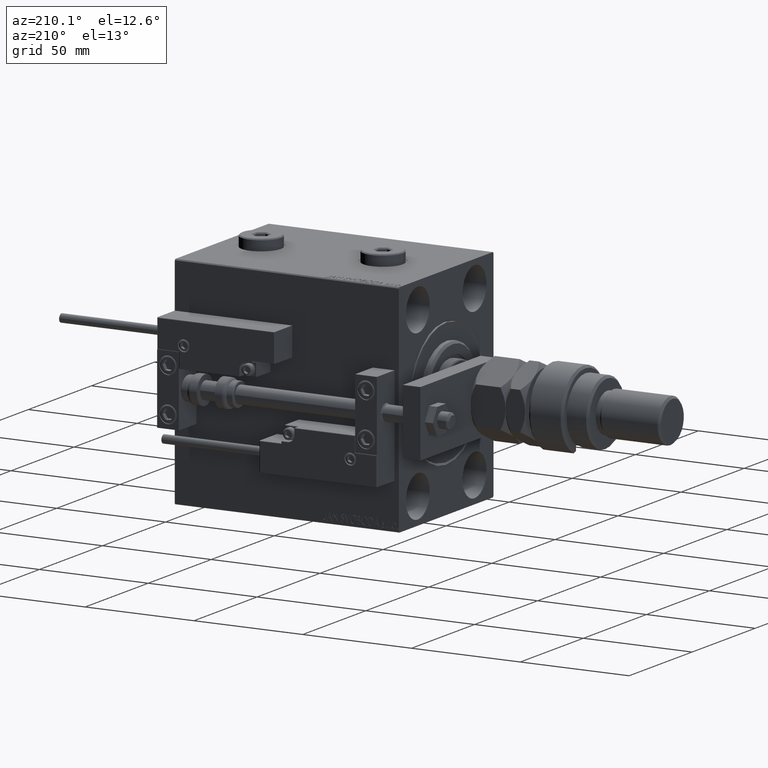
[diagram: clean part render]
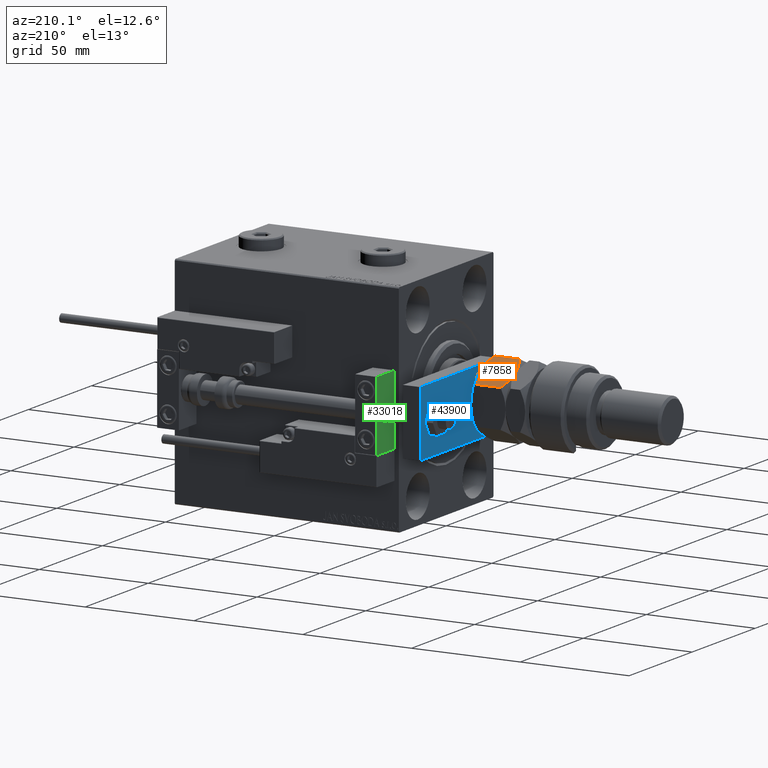
[diagram: same view with three faces highlighted in distinct colors, each labeled with its STEP entity id]
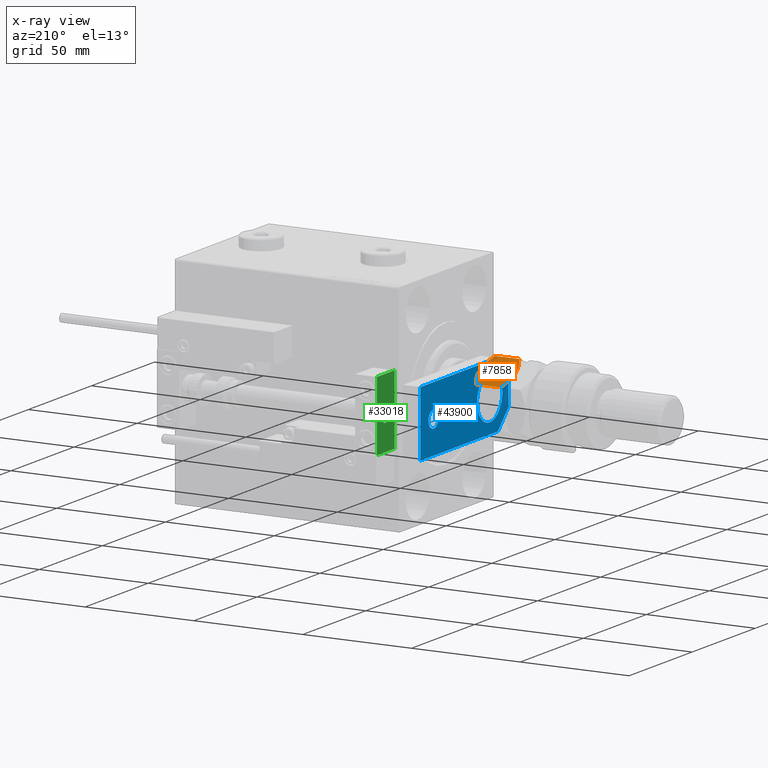
[diagram: x-ray of the same camera — body ghosted, the three highlighted faces saturated]
A machine part, auxiliary view with three faces highlighted in distinct colors.
The next image is the same camera in x-ray (body ghosted, the three faces saturated) — at least one of them is partly hidden behind the body in this view.
Their STEP definitions:

[orange] entity #7858 — the highlighted planar face has unit normal (-0, -0.5, -0.866).
#1274 = EDGE_LOOP ( 'NONE', ( #40872, #54211, #44875, #38166, #1657, #24970 ) ) ;
#1657 = ORIENTED_EDGE ( 'NONE', *, *, #21376, .T. ) ;
#3318 = EDGE_CURVE ( 'NONE', #19815, #14699, #12814, .T. ) ;
#3744 = CARTESIAN_POINT ( 'NONE',  ( 15.00000000000000000, 8.660254037844389075, 13.67949192431123784 ) ) ;
#4502 = EDGE_CURVE ( 'NONE', #13181, #15686, #19189, .T. ) ;
#5013 = CARTESIAN_POINT ( 'NONE',  ( 15.00000000000000000, 8.660254037844389075, 13.67949192431123784 ) ) ;
#5304 = CARTESIAN_POINT ( 'NONE',  ( 1.176108425306640504, 16.64148155974179843, 1.641481559741787111 ) ) ;
#7251 = B_SPLINE_CURVE_WITH_KNOTS ( 'NONE', 3,
 ( #26253, #5304, #13860, #26808, #30674, #26529, #43655, #35361 ),
 .UNSPECIFIED., .F., .F.,
 ( 4, 2, 2, 4 ),
 ( 2.544309033652185071E-07, 0.004488823491893902638, 0.006733108022389172782, 0.008977392552884443794 ),
 .UNSPECIFIED. ) ;
#7471 = CARTESIAN_POINT ( 'NONE',  ( 3.803331551779305683E-16, 17.32050807568877104, 13.67949192431124317 ) ) ;
#7858 = ADVANCED_FACE ( 'NONE', ( #19324 ), #48848, .F. ) ;
#7862 = CARTESIAN_POINT ( 'NONE',  ( 13.82389157469336283, 9.339280553791368789, 14.35851844025821400 ) ) ;
#10576 = B_SPLINE_CURVE_WITH_KNOTS ( 'NONE', 3,
 ( #43920, #25983, #51092, #39789, #30122, #39248 ),
 .UNSPECIFIED., .F., .F.,
 ( 4, 2, 4 ),
 ( 0.008977392552884448998, 0.01343452311421656706, 0.01789165367554868338 ),
 .UNSPECIFIED. ) ;
#12276 = CARTESIAN_POINT ( 'NONE',  ( 10.11832554202262457, 11.47869010025374514, 15.71619733805371411 ) ) ;
#12814 = LINE ( 'NONE', #16691, #35358 ) ;
#13181 = VERTEX_POINT ( 'NONE', #5013 ) ;
#13860 = CARTESIAN_POINT ( 'NONE',  ( 2.378834511187503331, 15.94708733029709080, 1.064486067744004671 ) ) ;
#14205 = CARTESIAN_POINT ( 'NONE',  ( 15.00000000000000000, 8.660254037844389075, 2.320508075688765715 ) ) ;
#14699 = VERTEX_POINT ( 'NONE', #38649 ) ;
#15534 = EDGE_CURVE ( 'NONE', #46351, #44136, #15943, .T. ) ;
#15686 = VERTEX_POINT ( 'NONE', #27843 ) ;
#15943 = B_SPLINE_CURVE_WITH_KNOTS ( 'NONE', 3,
 ( #51887, #39225, #38665, #18252, #47487, #52170 ),
 .UNSPECIFIED., .F., .F.,
 ( 4, 2, 4 ),
 ( 0.008977392552884443794, 0.01343452311421656532, 0.01789165367554868685 ),
 .UNSPECIFIED. ) ;
#16691 = CARTESIAN_POINT ( 'NONE',  ( 0.000000000000000000, 17.32050807568877104, 16.00000000000000000 ) ) ;
#17171 = EDGE_CURVE ( 'NONE', #15686, #19815, #10576, .T. ) ;
#17238 = EDGE_CURVE ( 'NONE', #14699, #46351, #7251, .T. ) ;
#17374 = DIRECTION ( 'NONE',  ( 0.8660254037844387076, -0.4999999999999997224, 0.000000000000000000 ) ) ;
#18252 = CARTESIAN_POINT ( 'NONE',  ( 12.61607045183964715, 10.03661640420386902, 1.060479031370879843 ) ) ;
#19189 = B_SPLINE_CURVE_WITH_KNOTS ( 'NONE', 3,
 ( #3744, #7862, #33230, #24680, #12276, #20565, #37391, #30454 ),
 .UNSPECIFIED., .F., .F.,
 ( 4, 2, 2, 4 ),
 ( 2.544309033641602453E-07, 0.004488823491893906975, 0.006733108022389177119, 0.008977392552884448998 ),
 .UNSPECIFIED. ) ;
#19324 = FACE_OUTER_BOUND ( 'NONE', #1274, .T. ) ;
#19815 = VERTEX_POINT ( 'NONE', #7471 ) ;
#20565 = CARTESIAN_POINT ( 'NONE',  ( 8.823580389329306328, 12.22621156269319798, 15.94046462602529957 ) ) ;
#21376 = EDGE_CURVE ( 'NONE', #13181, #44136, #51541, .T. ) ;
#23109 = CARTESIAN_POINT ( 'NONE',  ( 15.00000000000000000, 8.660254037844389075, 16.00000000000000000 ) ) ;
#24680 = CARTESIAN_POINT ( 'NONE',  ( 10.75222765045651663, 11.11270654730956586, 15.55242859148697576 ) ) ;
#24970 = ORIENTED_EDGE ( 'NONE', *, *, #15534, .F. ) ;
#25983 = CARTESIAN_POINT ( 'NONE',  ( 6.195449321423087241, 13.74356374221446764, 16.00000000000000355 ) ) ;
#26253 = CARTESIAN_POINT ( 'NONE',  ( 7.621669386706803087E-17, 17.32050807568877104, 2.320508075688761718 ) ) ;
#26529 = CARTESIAN_POINT ( 'NONE',  ( 6.176419610670692784, 13.75455055083996214, 0.05953537397470201609 ) ) ;
#26808 = CARTESIAN_POINT ( 'NONE',  ( 4.247772349543482484, 14.86805556622358893, 0.4475714085130255149 ) ) ;
#27843 = CARTESIAN_POINT ( 'NONE',  ( 7.500000000000000000, 12.99038105676657651, 16.00000000000000000 ) ) ;
#30122 = CARTESIAN_POINT ( 'NONE',  ( 1.174746544192161846, 16.64226784216984356, 14.35773215783022572 ) ) ;
#30454 = CARTESIAN_POINT ( 'NONE',  ( 7.500000000000000000, 12.99038105676657651, 16.00000000000000000 ) ) ;
#30674 = CARTESIAN_POINT ( 'NONE',  ( 4.881674457977373649, 14.50207201327941320, 0.2838026619462936107 ) ) ;
#32615 = VECTOR ( 'NONE', #47397, 1000.000000000000000 ) ;
#32909 = AXIS2_PLACEMENT_3D ( 'NONE', #36143, #44699, #17374 ) ;
#33230 = CARTESIAN_POINT ( 'NONE',  ( 12.62116548881249756, 10.03367478323606221, 14.93551393225599710 ) ) ;
#33499 = DIRECTION ( 'NONE',  ( -0.000000000000000000, -0.000000000000000000, -1.000000000000000000 ) ) ;
#35358 = VECTOR ( 'NONE', #33499, 1000.000000000000000 ) ;
#35361 = CARTESIAN_POINT ( 'NONE',  ( 7.499999999999997335, 12.99038105676658184, 0.000000000000000000 ) ) ;
#36143 = CARTESIAN_POINT ( 'NONE',  ( 15.00000000000000000, 8.660254037844389075, 16.00000000000000000 ) ) ;
#37391 = CARTESIAN_POINT ( 'NONE',  ( 8.156876182308252510, 12.61113341608665728, 16.00000000000000355 ) ) ;
#38166 = ORIENTED_EDGE ( 'NONE', *, *, #4502, .F. ) ;
#38649 = CARTESIAN_POINT ( 'NONE',  ( 7.621669386706803087E-17, 17.32050807568877104, 2.320508075688761718 ) ) ;
#38665 = CARTESIAN_POINT ( 'NONE',  ( 10.08691881950258740, 11.49682277995505331, 0.2303299219392160591 ) ) ;
#39225 = CARTESIAN_POINT ( 'NONE',  ( 8.804550678576910983, 12.23719837131869426, -5.031375706690542042E-16 ) ) ;
#39248 = CARTESIAN_POINT ( 'NONE',  ( 3.803331551779305683E-16, 17.32050807568877104, 13.67949192431124317 ) ) ;
#39789 = CARTESIAN_POINT ( 'NONE',  ( 2.383929548160350631, 15.94414570932928576, 14.93952096862913059 ) ) ;
#40872 = ORIENTED_EDGE ( 'NONE', *, *, #17238, .F. ) ;
#43655 = CARTESIAN_POINT ( 'NONE',  ( 6.843123817691747490, 13.36962869744650639, -3.557538378468061917E-16 ) ) ;
#43920 = CARTESIAN_POINT ( 'NONE',  ( 7.500000000000000000, 12.99038105676657651, 16.00000000000000000 ) ) ;
#44136 = VERTEX_POINT ( 'NONE', #14205 ) ;
#44699 = DIRECTION ( 'NONE',  ( -0.4999999999999997780, -0.8660254037844388186, 0.000000000000000000 ) ) ;
#44875 = ORIENTED_EDGE ( 'NONE', *, *, #17171, .F. ) ;
#46351 = VERTEX_POINT ( 'NONE', #51681 ) ;
#47397 = DIRECTION ( 'NONE',  ( -0.000000000000000000, -0.000000000000000000, -1.000000000000000000 ) ) ;
#47487 = CARTESIAN_POINT ( 'NONE',  ( 13.82525345580783949, 9.338494271363313004, 1.642267842169781833 ) ) ;
#48848 = PLANE ( 'NONE',  #32909 ) ;
#51092 = CARTESIAN_POINT ( 'NONE',  ( 4.913081180497409939, 14.48393933357810504, 15.76967007806078946 ) ) ;
#51541 = LINE ( 'NONE', #23109, #32615 ) ;
#51681 = CARTESIAN_POINT ( 'NONE',  ( 7.499999999999997335, 12.99038105676658184, 0.000000000000000000 ) ) ;
#51887 = CARTESIAN_POINT ( 'NONE',  ( 7.499999999999997335, 12.99038105676658184, 0.000000000000000000 ) ) ;
#52170 = CARTESIAN_POINT ( 'NONE',  ( 15.00000000000000000, 8.660254037844389075, 2.320508075688765715 ) ) ;
#54211 = ORIENTED_EDGE ( 'NONE', *, *, #3318, .F. ) ;

[blue] entity #43900 — the highlighted planar face has unit normal (-1, 0, 0).
#374 = VERTEX_POINT ( 'NONE', #43538 ) ;
#449 = DIRECTION ( 'NONE',  ( -1.000000000000000000, 0.000000000000000000, 0.000000000000000000 ) ) ;
#593 = CARTESIAN_POINT ( 'NONE',  ( 10.00000000000000178, 15.00000000000001243, 8.000000000000000000 ) ) ;
#611 = EDGE_CURVE ( 'NONE', #51661, #46571, #7041, .T. ) ;
#783 = VECTOR ( 'NONE', #33940, 1000.000000000000114 ) ;
#2549 = EDGE_CURVE ( 'NONE', #374, #11762, #5631, .T. ) ;
#3190 = CARTESIAN_POINT ( 'NONE',  ( 15.00000000000000355, 0.000000000000000000, 8.000000000000000000 ) ) ;
#4165 = VECTOR ( 'NONE', #449, 1000.000000000000000 ) ;
#4853 = CARTESIAN_POINT ( 'NONE',  ( 15.00000000000000000, 70.00000000000000000, 8.000000000000000000 ) ) ;
#5348 = LINE ( 'NONE', #47272, #42470 ) ;
#5631 = LINE ( 'NONE', #23193, #14189 ) ;
#5931 = ORIENTED_EDGE ( 'NONE', *, *, #31595, .F. ) ;
#6671 = CARTESIAN_POINT ( 'NONE',  ( 15.00000000000000000, 70.00000000000000000, 8.000000000000000000 ) ) ;
#6893 = CARTESIAN_POINT ( 'NONE',  ( -9.629649721936179265E-32, 15.00000000000001066, 8.000000000000000000 ) ) ;
#7041 = CIRCLE ( 'NONE', #39672, 4.000000000000000888 ) ;
#7166 = CARTESIAN_POINT ( 'NONE',  ( 6.499999999999974243, 0.000000000000000000, 8.000000000000000000 ) ) ;
#7241 = DIRECTION ( 'NONE',  ( 1.000000000000000000, 0.000000000000000000, 0.000000000000000000 ) ) ;
#7953 = ORIENTED_EDGE ( 'NONE', *, *, #41845, .F. ) ;
#9574 = PLANE ( 'NONE',  #41191 ) ;
#10387 = FACE_OUTER_BOUND ( 'NONE', #27434, .T. ) ;
#10398 = ORIENTED_EDGE ( 'NONE', *, *, #2549, .T. ) ;
#11258 = ORIENTED_EDGE ( 'NONE', *, *, #36624, .T. ) ;
#11622 = ORIENTED_EDGE ( 'NONE', *, *, #30599, .T. ) ;
#11725 = DIRECTION ( 'NONE',  ( 0.000000000000000000, 0.000000000000000000, 1.000000000000000000 ) ) ;
#11762 = VERTEX_POINT ( 'NONE', #23040 ) ;
#12908 = ORIENTED_EDGE ( 'NONE', *, *, #18894, .T. ) ;
#14108 = CARTESIAN_POINT ( 'NONE',  ( -10.00000000000000178, 15.00000000000001066, 8.000000000000000000 ) ) ;
#14189 = VECTOR ( 'NONE', #17779, 1000.000000000000000 ) ;
#15562 = VERTEX_POINT ( 'NONE', #14108 ) ;
#16045 = VECTOR ( 'NONE', #7241, 1000.000000000000000 ) ;
#16234 = AXIS2_PLACEMENT_3D ( 'NONE', #6893, #44430, #23983 ) ;
#17779 = DIRECTION ( 'NONE',  ( 0.7071067811865467956, -0.7071067811865483499, 0.000000000000000000 ) ) ;
#18894 = EDGE_CURVE ( 'NONE', #35796, #41343, #29521, .T. ) ;
#19207 = AXIS2_PLACEMENT_3D ( 'NONE', #41819, #11725, #46471 ) ;
#19671 = CARTESIAN_POINT ( 'NONE',  ( -15.00000000000000355, 0.000000000000000000, 8.000000000000000000 ) ) ;
#20118 = CARTESIAN_POINT ( 'NONE',  ( -14.99999999999999822, 70.00000000000000000, 8.000000000000000000 ) ) ;
#20706 = ORIENTED_EDGE ( 'NONE', *, *, #39570, .T. ) ;
#22537 = FACE_BOUND ( 'NONE', #47592, .T. ) ;
#23040 = CARTESIAN_POINT ( 'NONE',  ( -6.499999999999993783, 0.000000000000000000, 8.000000000000000000 ) ) ;
#23193 = CARTESIAN_POINT ( 'NONE',  ( -3.250000000000003553, -3.249999999999996891, 8.000000000000000000 ) ) ;
#23983 = DIRECTION ( 'NONE',  ( 1.000000000000000000, 0.000000000000000000, 0.000000000000000000 ) ) ;
#25256 = CARTESIAN_POINT ( 'NONE',  ( -1.432611055310774642E-16, 59.50000000000001421, 8.000000000000000000 ) ) ;
#25805 = DIRECTION ( 'NONE',  ( 0.000000000000000000, 0.000000000000000000, 1.000000000000000000 ) ) ;
#25925 = EDGE_CURVE ( 'NONE', #11762, #35796, #48641, .T. ) ;
#26386 = DIRECTION ( 'NONE',  ( -0.000000000000000000, 0.000000000000000000, 1.000000000000000000 ) ) ;
#26779 = CARTESIAN_POINT ( 'NONE',  ( 4.000000000000000888, 59.50000000000001421, 8.000000000000000000 ) ) ;
#27434 = EDGE_LOOP ( 'NONE', ( #11622, #10398, #28344, #12908, #11258, #20706 ) ) ;
#27956 = VERTEX_POINT ( 'NONE', #6671 ) ;
#28344 = ORIENTED_EDGE ( 'NONE', *, *, #25925, .T. ) ;
#29348 = DIRECTION ( 'NONE',  ( -4.956352788505162775E-17, 1.000000000000000000, 0.000000000000000000 ) ) ;
#29521 = LINE ( 'NONE', #42229, #783 ) ;
#30327 = CIRCLE ( 'NONE', #16234, 10.00000000000000178 ) ;
#30599 = EDGE_CURVE ( 'NONE', #50361, #374, #5348, .T. ) ;
#30635 = CARTESIAN_POINT ( 'NONE',  ( 15.00000000000000355, 8.500000000000007105, 8.000000000000000000 ) ) ;
#31089 = DIRECTION ( 'NONE',  ( 1.000000000000000000, 0.000000000000000000, 0.000000000000000000 ) ) ;
#31313 = EDGE_LOOP ( 'NONE', ( #43989, #7953 ) ) ;
#31595 = EDGE_CURVE ( 'NONE', #41133, #15562, #38136, .T. ) ;
#31612 = CARTESIAN_POINT ( 'NONE',  ( 0.000000000000000000, 0.000000000000000000, 8.000000000000000000 ) ) ;
#33774 = DIRECTION ( 'NONE',  ( 0.000000000000000000, 0.000000000000000000, 1.000000000000000000 ) ) ;
#33940 = DIRECTION ( 'NONE',  ( 0.7071067811865483499, 0.7071067811865465735, -0.000000000000000000 ) ) ;
#34903 = EDGE_CURVE ( 'NONE', #15562, #41133, #30327, .T. ) ;
#35796 = VERTEX_POINT ( 'NONE', #7166 ) ;
#36624 = EDGE_CURVE ( 'NONE', #41343, #27956, #46201, .T. ) ;
#37108 = CARTESIAN_POINT ( 'NONE',  ( -4.000000000000000888, 59.50000000000001421, 8.000000000000000000 ) ) ;
#38136 = CIRCLE ( 'NONE', #41651, 10.00000000000000178 ) ;
#39116 = FACE_BOUND ( 'NONE', #31313, .T. ) ;
#39120 = ORIENTED_EDGE ( 'NONE', *, *, #34903, .F. ) ;
#39570 = EDGE_CURVE ( 'NONE', #27956, #50361, #42909, .T. ) ;
#39672 = AXIS2_PLACEMENT_3D ( 'NONE', #25256, #25805, #50913 ) ;
#41133 = VERTEX_POINT ( 'NONE', #593 ) ;
#41191 = AXIS2_PLACEMENT_3D ( 'NONE', #31612, #26386, #31089 ) ;
#41343 = VERTEX_POINT ( 'NONE', #30635 ) ;
#41651 = AXIS2_PLACEMENT_3D ( 'NONE', #42610, #33774, #51139 ) ;
#41819 = CARTESIAN_POINT ( 'NONE',  ( -1.432611055310774642E-16, 59.50000000000001421, 8.000000000000000000 ) ) ;
#41845 = EDGE_CURVE ( 'NONE', #46571, #51661, #49179, .T. ) ;
#42229 = CARTESIAN_POINT ( 'NONE',  ( 3.249999999999979128, -3.249999999999987121, 8.000000000000000000 ) ) ;
#42470 = VECTOR ( 'NONE', #43964, 1000.000000000000000 ) ;
#42610 = CARTESIAN_POINT ( 'NONE',  ( -9.629649721936179265E-32, 15.00000000000001066, 8.000000000000000000 ) ) ;
#42909 = LINE ( 'NONE', #4853, #4165 ) ;
#43538 = CARTESIAN_POINT ( 'NONE',  ( -15.00000000000000355, 8.500000000000028422, 8.000000000000000000 ) ) ;
#43900 = ADVANCED_FACE ( 'NONE', ( #39116, #10387, #22537 ), #9574, .T. ) ;
#43964 = DIRECTION ( 'NONE',  ( -7.434529182757744162E-17, -1.000000000000000000, 0.000000000000000000 ) ) ;
#43989 = ORIENTED_EDGE ( 'NONE', *, *, #611, .F. ) ;
#44430 = DIRECTION ( 'NONE',  ( 0.000000000000000000, 0.000000000000000000, 1.000000000000000000 ) ) ;
#46201 = LINE ( 'NONE', #3190, #50699 ) ;
#46471 = DIRECTION ( 'NONE',  ( 1.000000000000000000, 0.000000000000000000, 0.000000000000000000 ) ) ;
#46571 = VERTEX_POINT ( 'NONE', #26779 ) ;
#47272 = CARTESIAN_POINT ( 'NONE',  ( -14.99999999999999822, 70.00000000000000000, 8.000000000000000000 ) ) ;
#47592 = EDGE_LOOP ( 'NONE', ( #39120, #5931 ) ) ;
#48641 = LINE ( 'NONE', #19671, #16045 ) ;
#49179 = CIRCLE ( 'NONE', #19207, 4.000000000000000888 ) ;
#50361 = VERTEX_POINT ( 'NONE', #20118 ) ;
#50699 = VECTOR ( 'NONE', #29348, 1000.000000000000000 ) ;
#50913 = DIRECTION ( 'NONE',  ( 1.000000000000000000, 0.000000000000000000, 0.000000000000000000 ) ) ;
#51139 = DIRECTION ( 'NONE',  ( 1.000000000000000000, 0.000000000000000000, 0.000000000000000000 ) ) ;
#51661 = VERTEX_POINT ( 'NONE', #37108 ) ;

[green] entity #33018 — the highlighted planar face has unit normal (1, 0, -0).
#650 = ORIENTED_EDGE ( 'NONE', *, *, #11793, .T. ) ;
#681 = VERTEX_POINT ( 'NONE', #18105 ) ;
#1123 = CARTESIAN_POINT ( 'NONE',  ( 10.00000000000000000, -7.000000000000000000, -16.00000000000000711 ) ) ;
#2095 = DIRECTION ( 'NONE',  ( -1.000000000000000000, 0.000000000000000000, 0.000000000000000000 ) ) ;
#4158 = VERTEX_POINT ( 'NONE', #16280 ) ;
#5614 = AXIS2_PLACEMENT_3D ( 'NONE', #6714, #43776, #24336 ) ;
#6714 = CARTESIAN_POINT ( 'NONE',  ( 10.00000000000000000, 0.000000000000000000, 0.000000000000000000 ) ) ;
#6788 = CIRCLE ( 'NONE', #22627, 4.000000000000000000 ) ;
#7652 = CIRCLE ( 'NONE', #14722, 4.000000000000000000 ) ;
#9392 = VECTOR ( 'NONE', #34257, 1000.000000000000000 ) ;
#9956 = CARTESIAN_POINT ( 'NONE',  ( 10.00000000000000000, 0.000000000000000000, 4.000000000000000000 ) ) ;
#10367 = DIRECTION ( 'NONE',  ( 0.000000000000000000, -1.000000000000000000, 0.000000000000000000 ) ) ;
#10930 = EDGE_CURVE ( 'NONE', #49940, #17537, #46399, .T. ) ;
#11401 = LINE ( 'NONE', #19146, #41228 ) ;
#11793 = EDGE_CURVE ( 'NONE', #42217, #41344, #7652, .T. ) ;
#13653 = ORIENTED_EDGE ( 'NONE', *, *, #10930, .T. ) ;
#14722 = AXIS2_PLACEMENT_3D ( 'NONE', #44821, #2095, #40163 ) ;
#15202 = LINE ( 'NONE', #43914, #20367 ) ;
#15341 = DIRECTION ( 'NONE',  ( -1.000000000000000000, 0.000000000000000000, 0.000000000000000000 ) ) ;
#15875 = CARTESIAN_POINT ( 'NONE',  ( 10.00000000000000000, 0.000000000000000000, 0.000000000000000000 ) ) ;
#16280 = CARTESIAN_POINT ( 'NONE',  ( 10.00000000000000000, 7.000000000000000000, 15.99999999999999289 ) ) ;
#17537 = VERTEX_POINT ( 'NONE', #1123 ) ;
#18105 = CARTESIAN_POINT ( 'NONE',  ( 10.00000000000000000, 7.000000000000000000, -16.00000000000000711 ) ) ;
#18128 = LINE ( 'NONE', #39095, #29086 ) ;
#19146 = CARTESIAN_POINT ( 'NONE',  ( 10.00000000000000000, 7.000000000000000000, 15.99999999999999289 ) ) ;
#19403 = FACE_BOUND ( 'NONE', #49567, .T. ) ;
#20367 = VECTOR ( 'NONE', #22661, 1000.000000000000000 ) ;
#22627 = AXIS2_PLACEMENT_3D ( 'NONE', #15875, #15341, #48725 ) ;
#22661 = DIRECTION ( 'NONE',  ( 0.000000000000000000, -1.000000000000000000, 0.000000000000000000 ) ) ;
#22981 = CARTESIAN_POINT ( 'NONE',  ( 10.00000000000000000, -7.000000000000000000, 15.99999999999999289 ) ) ;
#23080 = EDGE_CURVE ( 'NONE', #681, #17537, #18128, .T. ) ;
#24336 = DIRECTION ( 'NONE',  ( -0.000000000000000000, 0.000000000000000000, 1.000000000000000000 ) ) ;
#28197 = FACE_OUTER_BOUND ( 'NONE', #53656, .T. ) ;
#28211 = DIRECTION ( 'NONE',  ( 0.000000000000000000, 0.000000000000000000, -1.000000000000000000 ) ) ;
#29086 = VECTOR ( 'NONE', #10367, 1000.000000000000000 ) ;
#29554 = CARTESIAN_POINT ( 'NONE',  ( 10.00000000000000000, -7.000000000000000000, 15.99999999999999289 ) ) ;
#30819 = ORIENTED_EDGE ( 'NONE', *, *, #52019, .T. ) ;
#33018 = ADVANCED_FACE ( 'NONE', ( #19403, #28197 ), #54126, .F. ) ;
#33086 = CARTESIAN_POINT ( 'NONE',  ( 10.00000000000000000, 4.898587196589412829E-16, -4.000000000000000000 ) ) ;
#34257 = DIRECTION ( 'NONE',  ( 0.000000000000000000, 0.000000000000000000, -1.000000000000000000 ) ) ;
#35409 = ORIENTED_EDGE ( 'NONE', *, *, #44298, .F. ) ;
#39095 = CARTESIAN_POINT ( 'NONE',  ( 10.00000000000000000, 7.000000000000000000, -16.00000000000000711 ) ) ;
#40163 = DIRECTION ( 'NONE',  ( 0.000000000000000000, 0.000000000000000000, 1.000000000000000000 ) ) ;
#41228 = VECTOR ( 'NONE', #28211, 1000.000000000000000 ) ;
#41344 = VERTEX_POINT ( 'NONE', #9956 ) ;
#41831 = ORIENTED_EDGE ( 'NONE', *, *, #23080, .F. ) ;
#42217 = VERTEX_POINT ( 'NONE', #33086 ) ;
#42937 = EDGE_CURVE ( 'NONE', #41344, #42217, #6788, .T. ) ;
#43776 = DIRECTION ( 'NONE',  ( -1.000000000000000000, 0.000000000000000000, -0.000000000000000000 ) ) ;
#43914 = CARTESIAN_POINT ( 'NONE',  ( 10.00000000000000000, 7.000000000000000000, 15.99999999999999289 ) ) ;
#44298 = EDGE_CURVE ( 'NONE', #4158, #681, #11401, .T. ) ;
#44821 = CARTESIAN_POINT ( 'NONE',  ( 10.00000000000000000, 0.000000000000000000, 0.000000000000000000 ) ) ;
#46399 = LINE ( 'NONE', #29554, #9392 ) ;
#47452 = ORIENTED_EDGE ( 'NONE', *, *, #42937, .T. ) ;
#48725 = DIRECTION ( 'NONE',  ( 0.000000000000000000, 0.000000000000000000, 1.000000000000000000 ) ) ;
#49567 = EDGE_LOOP ( 'NONE', ( #47452, #650 ) ) ;
#49940 = VERTEX_POINT ( 'NONE', #22981 ) ;
#52019 = EDGE_CURVE ( 'NONE', #4158, #49940, #15202, .T. ) ;
#53656 = EDGE_LOOP ( 'NONE', ( #13653, #41831, #35409, #30819 ) ) ;
#54126 = PLANE ( 'NONE',  #5614 ) ;